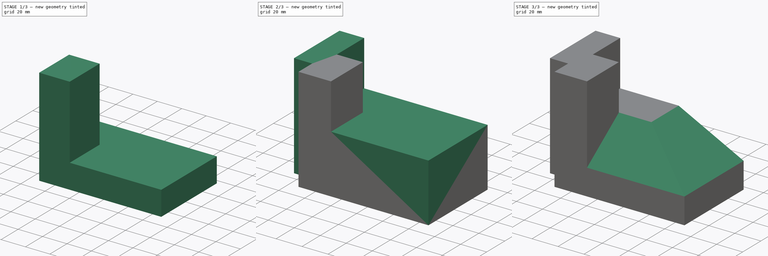
[diagram: build sequence overview — one tinted view per stage of 3, left to right]
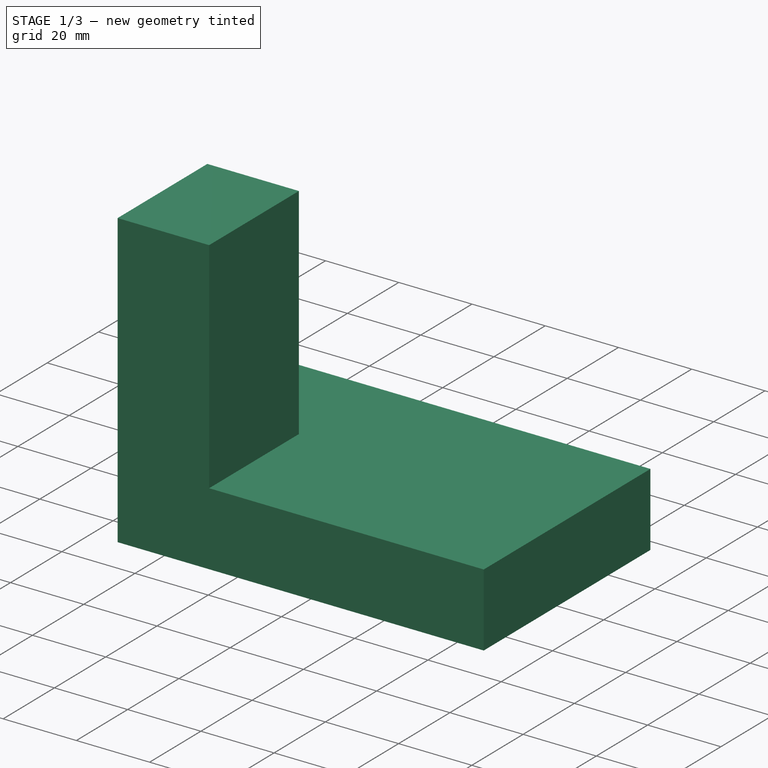
[diagram: stage 1 of 3 — iso view after this stage's code; geometry added in this stage tinted green]
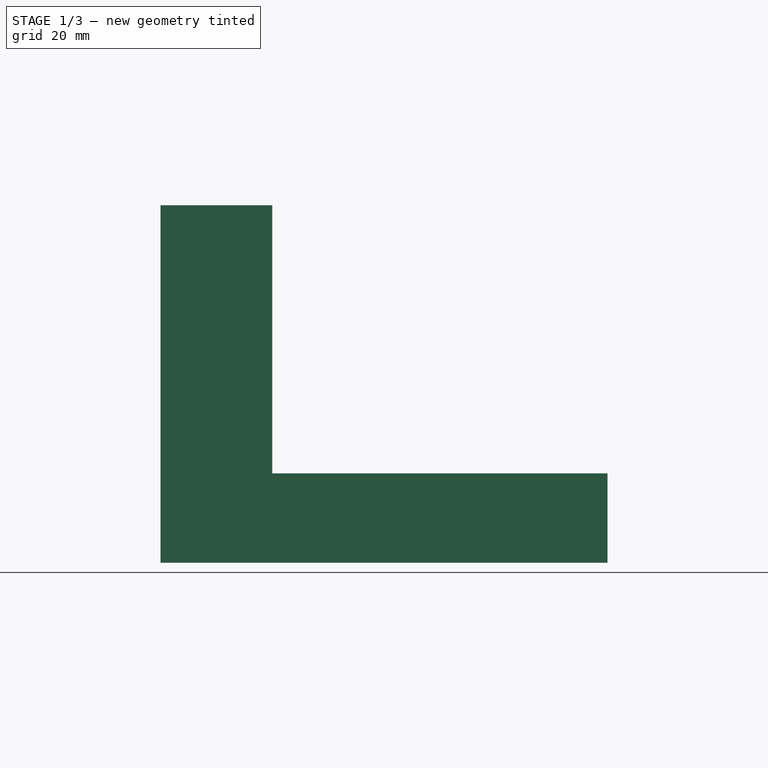
[diagram: stage 1 of 3 — front view after this stage's code; geometry added in this stage tinted green]
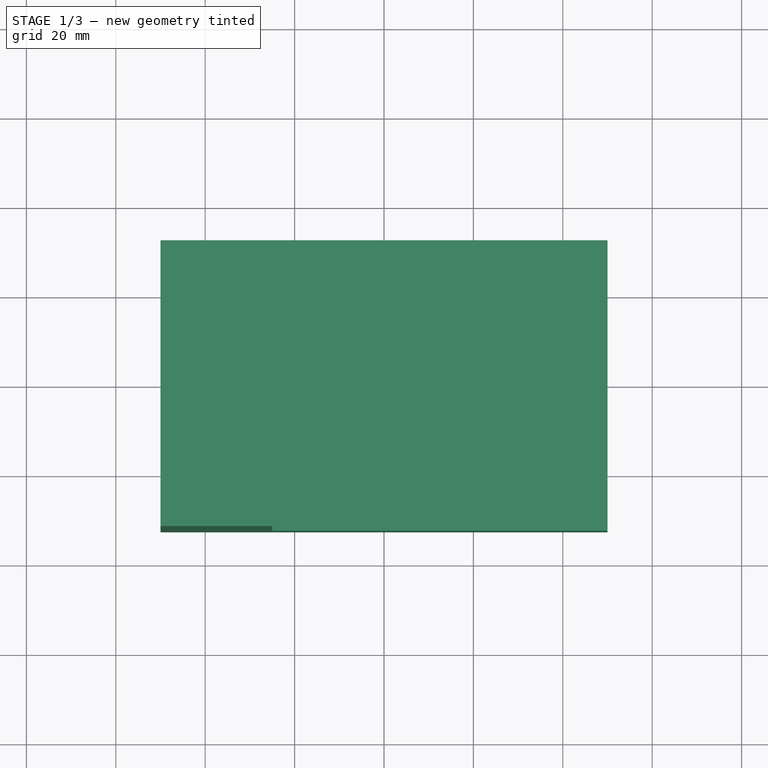
[diagram: stage 1 of 3 — top view after this stage's code; geometry added in this stage tinted green]
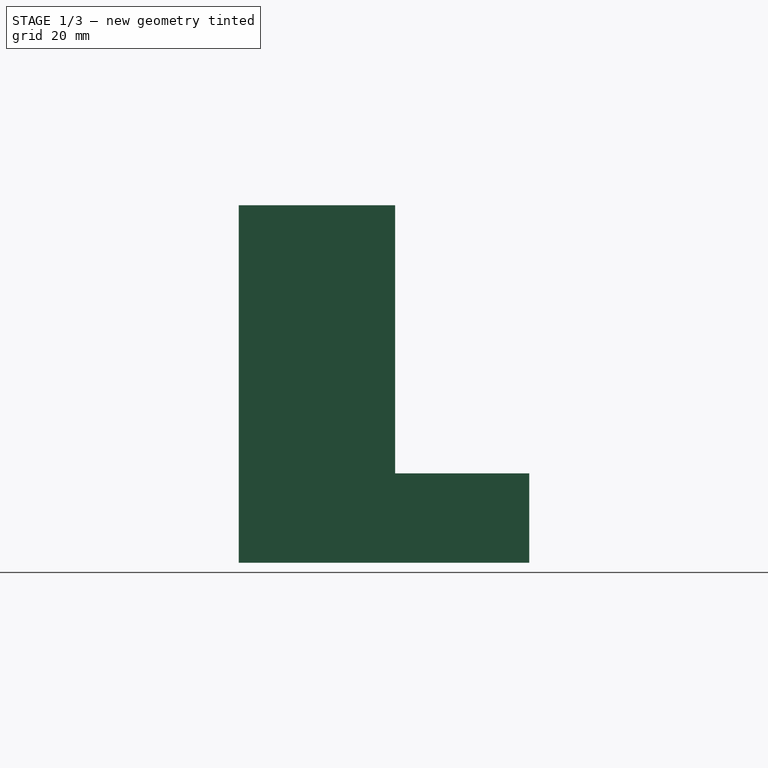
[diagram: stage 1 of 3 — right view after this stage's code; geometry added in this stage tinted green]
FCSTD DOCUMENT  (FreeCAD 0.16R)
Label: Fig 3.27 Final
License: All rights reserved
LicenseURL: http://en.wikipedia.org/wiki/All_rights_reserved
objects: Sketcher::SketchObject×6, PartDesign::Pad×4, PartDesign::Pocket×2
note: 18 computed .brp shape members not serialized (recipe doc carries the construction recipe); baked Part::Feature solids carry a one-line shape summary decoded from their .brp

FEATURE [Sketcher::SketchObject] Sketch
  sketch-geometry (4):
    g0: LineSegment StartX=-50 StartY=32.5 StartZ=0 EndX=50 EndY=32.5 EndZ=0
    g1: LineSegment StartX=50 StartY=32.5 StartZ=0 EndX=50 EndY=-32.5 EndZ=0
    g2: LineSegment StartX=50 StartY=-32.5 StartZ=0 EndX=-50 EndY=-32.5 EndZ=0
    g3: LineSegment StartX=-50 StartY=-32.5 StartZ=0 EndX=-50 EndY=32.5 EndZ=0
  constraints (12):
    c: Coincident(g0,g1)
    c: Coincident(g1,g2)
    c: Coincident(g2,g3)
    c: Coincident(g3,g0)
    c: Horizontal(g0)
    c: Horizontal(g2)
    c: Vertical(g1)
    c: Vertical(g3)
    c: DistanceY(g1,g1) = 65
    c: DistanceX(g2,g2) = 100
    c: Symmetric(g2,g1,g-2)
    c: Symmetric(g1,g0,g-1)
FEATURE [PartDesign::Pad] Pad
  Length = 20
  Length2 = 100
  Sketch = -> Sketch
  Type = 0
FEATURE [Sketcher::SketchObject] Sketch001
  ExternalGeometry = -> [Pad]
  Placement = pos=(0,0,20) rot=(0,0,1;0rad)
  Support = -> Pad [Face6]
  sketch-geometry (4):
    g0: LineSegment StartX=-50 StartY=2.5 StartZ=0 EndX=-25 EndY=2.5 EndZ=0
    g1: LineSegment StartX=-25 StartY=2.5 StartZ=0 EndX=-25 EndY=-32.5 EndZ=0
    g2: LineSegment StartX=-25 StartY=-32.5 StartZ=0 EndX=-50 EndY=-32.5 EndZ=0
    g3: LineSegment StartX=-50 StartY=-32.5 StartZ=0 EndX=-50 EndY=2.5 EndZ=0
  constraints (11):
    c: Coincident(g0,g1)
    c: Coincident(g1,g2)
    c: Coincident(g2,g3)
    c: Coincident(g3,g0)
    c: Horizontal(g0)
    c: Horizontal(g2)
    c: Vertical(g1)
    c: Vertical(g3)
    c: Coincident(g2,g-4)
    c: DistanceY(g1,g1) = 35
    c: DistanceX(g0,g0) = 25
FEATURE [PartDesign::Pad] Pad001
  Length = 60
  Length2 = 100
  Sketch = -> Sketch001
  Type = 0
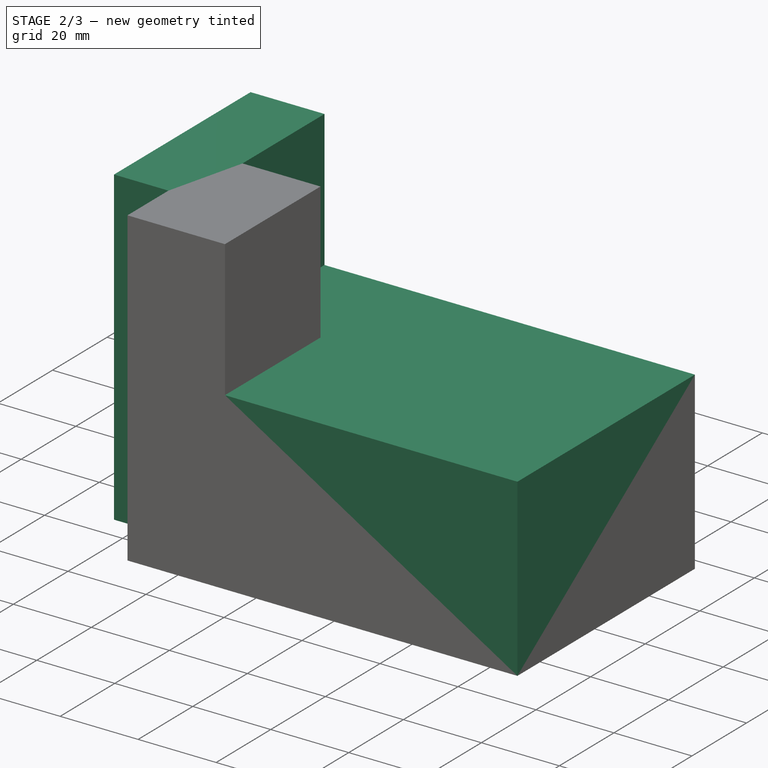
[diagram: stage 2 of 3 — iso view after this stage's code; geometry added in this stage tinted green]
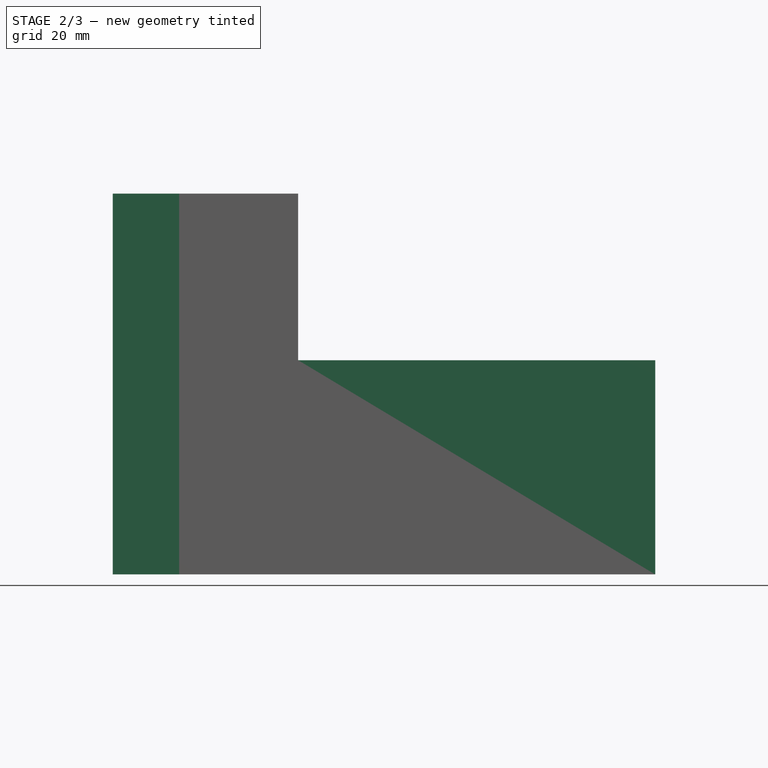
[diagram: stage 2 of 3 — front view after this stage's code; geometry added in this stage tinted green]
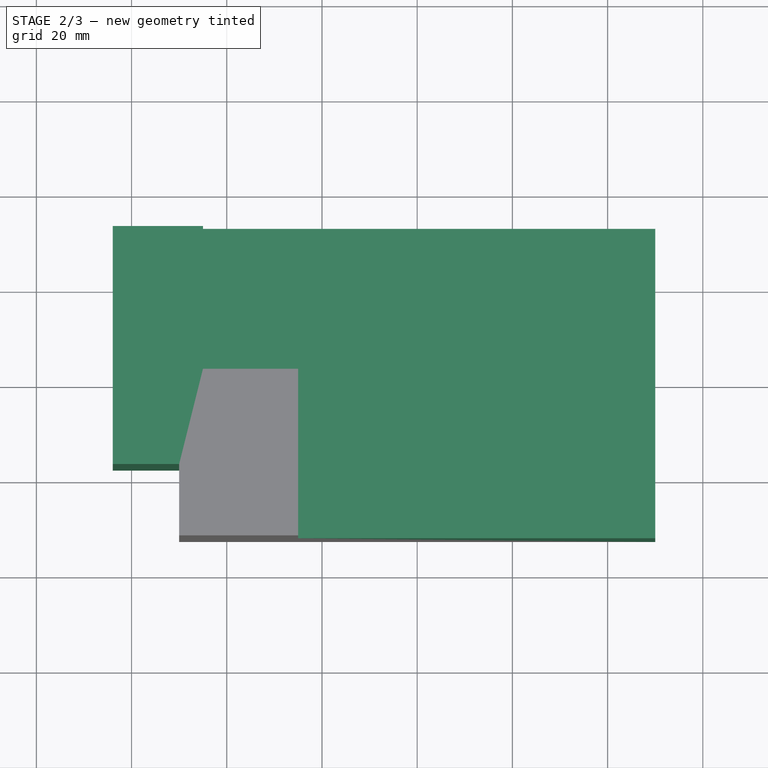
[diagram: stage 2 of 3 — top view after this stage's code; geometry added in this stage tinted green]
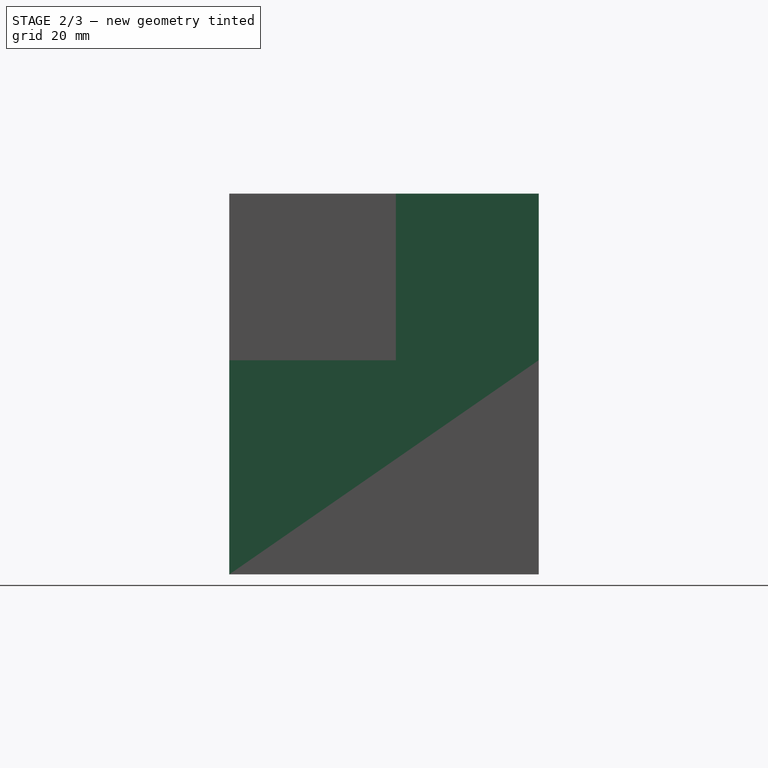
[diagram: stage 2 of 3 — right view after this stage's code; geometry added in this stage tinted green]
FEATURE [Sketcher::SketchObject] Sketch002
  ExternalGeometry = -> [Pad001]
  Placement = pos=(0,0,80) rot=(0,0,1;0rad)
  Support = -> Pad001 [Face7]
  sketch-geometry (4):
    g0: LineSegment StartX=-45 StartY=32.5 StartZ=0 EndX=-63.94 EndY=32.5 EndZ=0
    g1: LineSegment StartX=-63.94 StartY=32.5 StartZ=0 EndX=-63.94 EndY=-17.5 EndZ=0
    g2: LineSegment StartX=-63.94 StartY=-17.5 StartZ=0 EndX=-45 EndY=-17.5 EndZ=0
    g3: LineSegment StartX=-45 StartY=-17.5 StartZ=0 EndX=-45 EndY=32.5 EndZ=0
  constraints (11):
    c: Coincident(g0,g1)
    c: Coincident(g1,g2)
    c: Coincident(g2,g3)
    c: Coincident(g3,g0)
    c: Horizontal(g0)
    c: Horizontal(g2)
    c: Vertical(g1)
    c: Vertical(g3)
    c: DistanceX(g2,g-3) = 20
    c: DistanceY(g-3,g2) = 15
    c: DistanceY(g2,g0) = 50
FEATURE [PartDesign::Pad] Pad002
  Length = 80
  Length2 = 100
  Reversed = true
  Sketch = -> Sketch002
  Type = 0
FEATURE [Sketcher::SketchObject] Sketch003
  ExternalGeometry = -> [Pad002]
  Placement = pos=(0,0,20) rot=(0,0,1;0rad)
  Support = -> Pad002 [Face3]
  sketch-geometry (6):
    g0: LineSegment StartX=-45 StartY=32.5 StartZ=0 EndX=50 EndY=32.5 EndZ=0
    g1: LineSegment StartX=50 StartY=32.5 StartZ=0 EndX=50 EndY=-32.5 EndZ=0
    g2: LineSegment StartX=50 StartY=-32.5 StartZ=0 EndX=-25 EndY=-32.5 EndZ=0
    g3: LineSegment StartX=-25 StartY=-32.5 StartZ=0 EndX=-25 EndY=2.5 EndZ=0
    g4: LineSegment StartX=-25 StartY=2.5 StartZ=0 EndX=-45 EndY=2.5 EndZ=0
    g5: LineSegment StartX=-45 StartY=2.5 StartZ=0 EndX=-45 EndY=32.5 EndZ=0
  constraints (12):
    c: Coincident(g0,g1)
    c: Coincident(g1,g2)
    c: Coincident(g2,g3)
    c: Vertical(g3)
    c: Coincident(g3,g4)
    c: Coincident(g4,g5)
    c: Coincident(g5,g0)
    c: Coincident(g0,g-6)
    c: Coincident(g1,g-5)
    c: Coincident(g2,g-5)
    c: Coincident(g3,g-7)
    c: Coincident(g4,g-7)
FEATURE [PartDesign::Pad] Pad003
  Length = 25
  Length2 = 100
  Sketch = -> Sketch003
  Type = 0
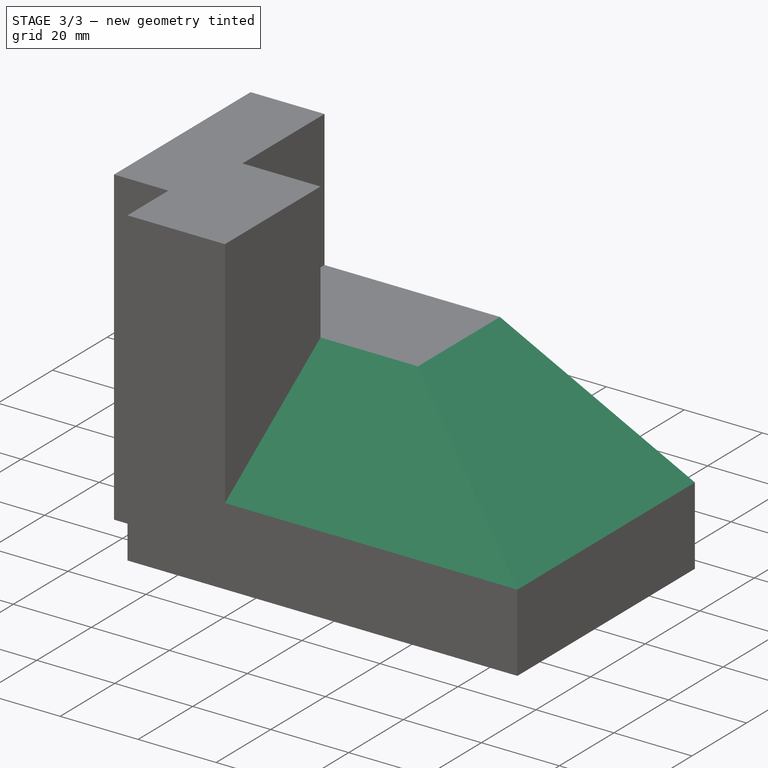
[diagram: stage 3 of 3 — iso view after this stage's code; geometry added in this stage tinted green]
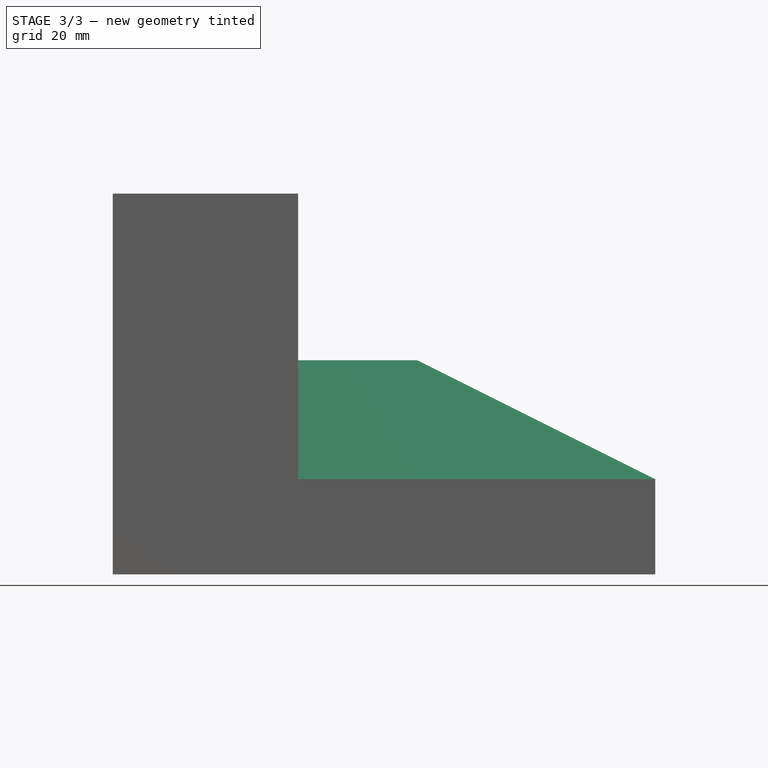
[diagram: stage 3 of 3 — front view after this stage's code; geometry added in this stage tinted green]
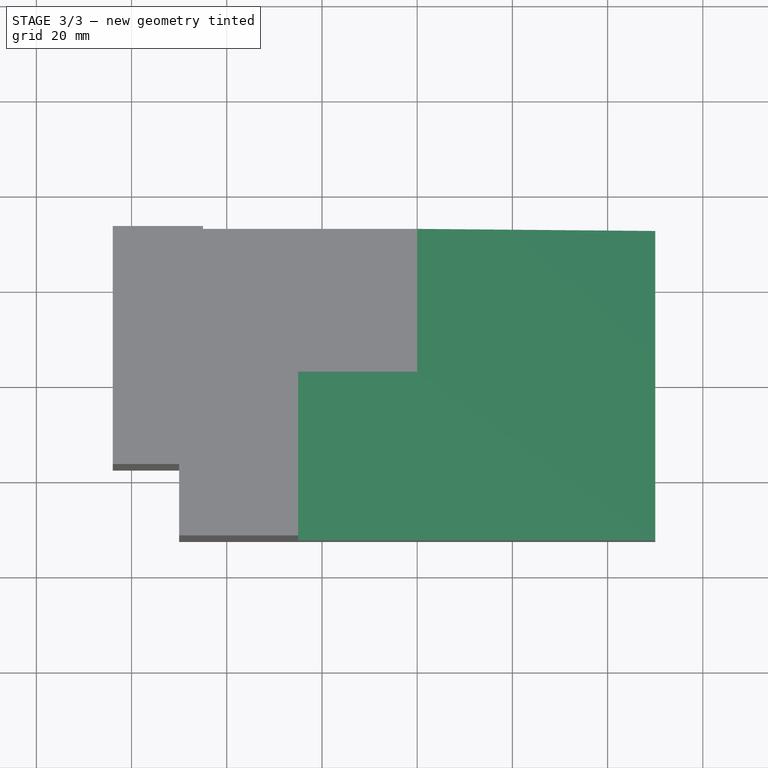
[diagram: stage 3 of 3 — top view after this stage's code; geometry added in this stage tinted green]
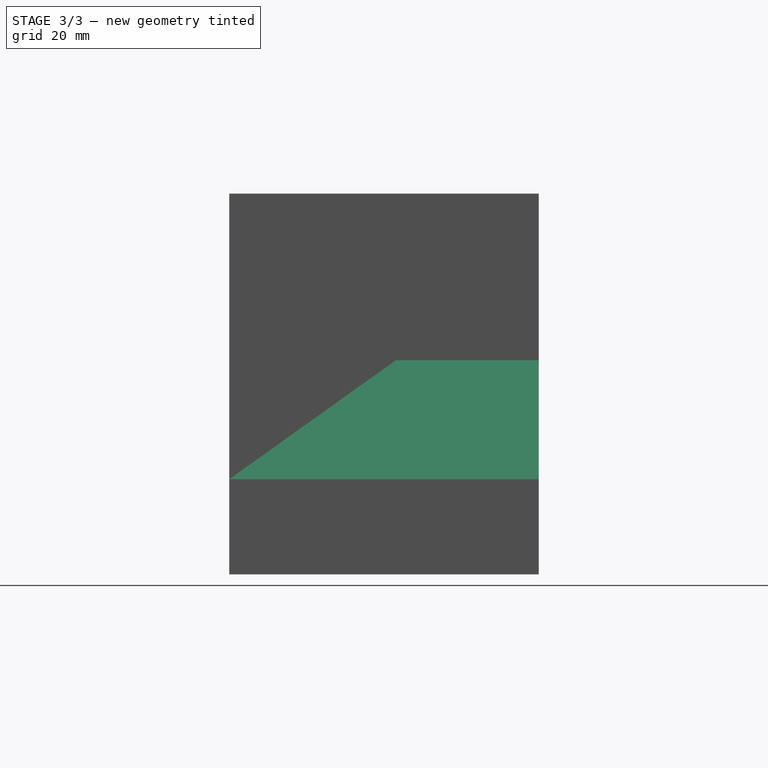
[diagram: stage 3 of 3 — right view after this stage's code; geometry added in this stage tinted green]
FEATURE [Sketcher::SketchObject] Sketch004
  ExternalGeometry = -> [Pad003]
  Placement = pos=(50,0,0) rot=(0.57735,0.57735,0.57735;2.0944rad)
  Support = -> Pad003 [Face11]
  sketch-geometry (3):
    g0: LineSegment StartX=-32.5 StartY=45 StartZ=0 EndX=2.5 EndY=45 EndZ=0
    g1: LineSegment StartX=2.5 StartY=45 StartZ=0 EndX=-32.5 EndY=20 EndZ=0
    g2: LineSegment StartX=-32.5 StartY=20 StartZ=0 EndX=-32.5 EndY=45 EndZ=0
  constraints (8):
    c: Horizontal(g0)
    c: Coincident(g0,g1)
    c: Coincident(g1,g2)
    c: Coincident(g2,g0)
    c: Vertical(g2)
    c: Coincident(g0,g-4)
    c: DistanceY(g-4,g1) = 20
    c: DistanceX(g0,g-3) = 30
FEATURE [PartDesign::Pocket] Pocket
  Length = 75
  Sketch = -> Sketch004
  Type = 0
FEATURE [Sketcher::SketchObject] Sketch005
  ExternalGeometry = -> [Pocket]
  Placement = pos=(0,32.5,0) rot=(0,0.707107,0.707107;3.14159rad)
  Support = -> Pocket [Face2]
  sketch-geometry (3):
    g0: LineSegment StartX=-50 StartY=20 StartZ=0 EndX=0 EndY=45 EndZ=0
    g1: LineSegment StartX=0 StartY=45 StartZ=0 EndX=-50 EndY=45 EndZ=0
    g2: LineSegment StartX=-50 StartY=45 StartZ=0 EndX=-50 EndY=20 EndZ=0
  constraints (8):
    c: Coincident(g0,g1)
    c: Coincident(g1,g2)
    c: Coincident(g2,g0)
    c: DistanceY(g-4,g0) = 20
    c: Vertical(g2)
    c: Coincident(g1,g-4)
    c: PointOnObject(g0,g-3)
    c: DistanceX(g0,g-3) = 45
FEATURE [PartDesign::Pocket] Pocket001
  Length = 5
  Sketch = -> Sketch005
  Type = 1
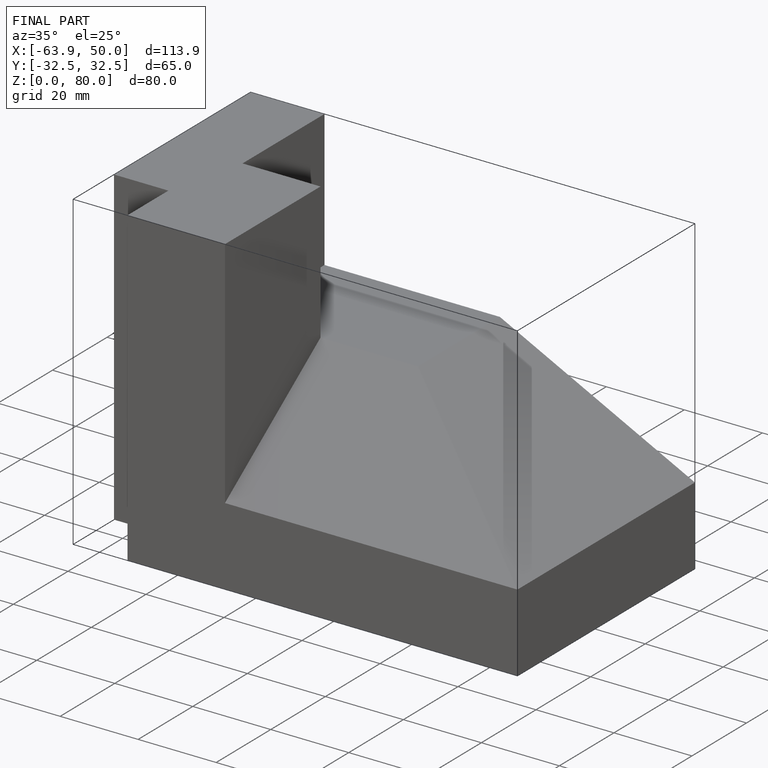
[diagram: finished part — iso view with bounding-box wireframe]
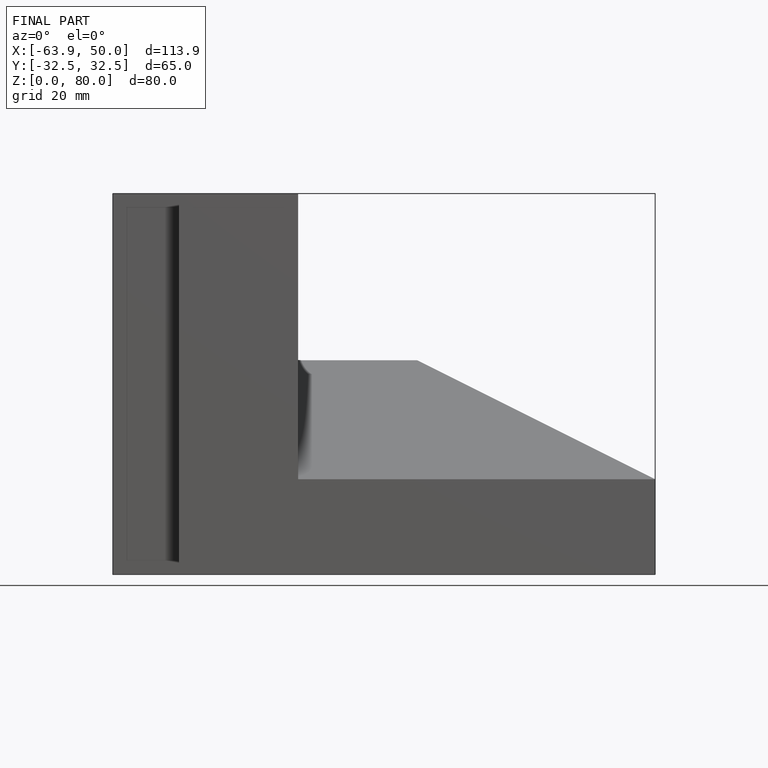
[diagram: finished part — front view with bounding-box wireframe]
